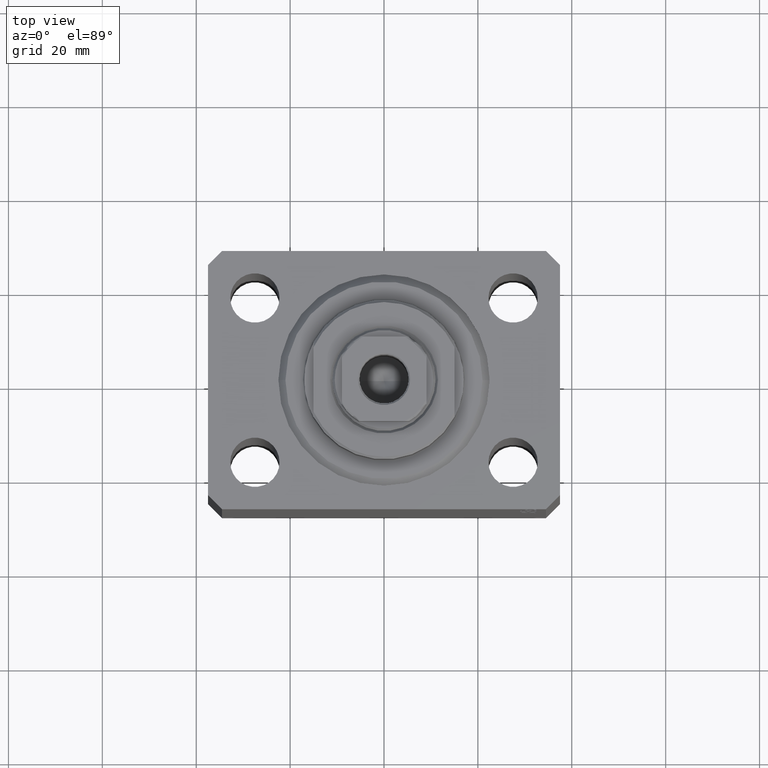
[diagram: clean part render]
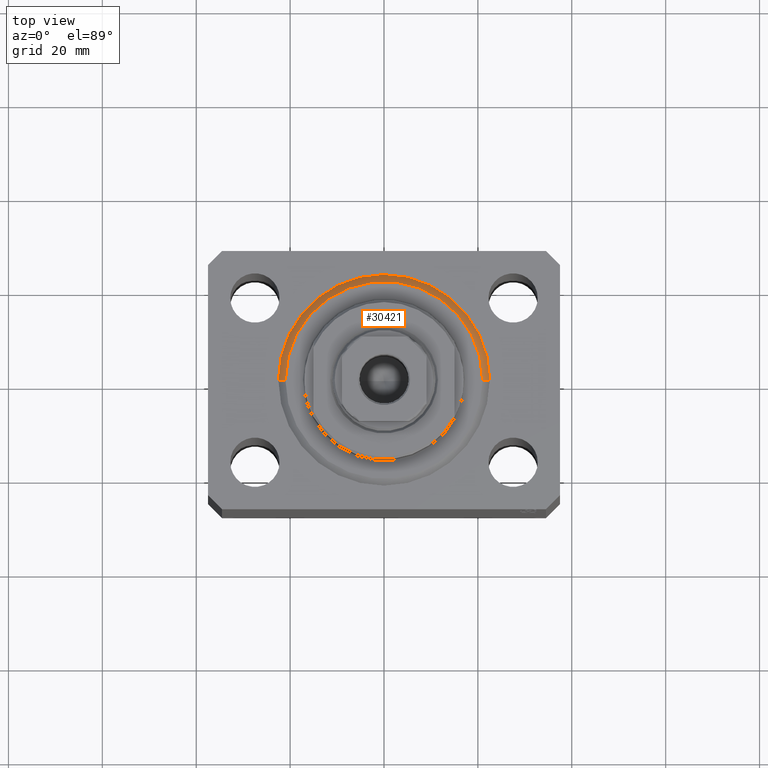
[diagram: same view with one face highlighted and labeled with its STEP entity id]
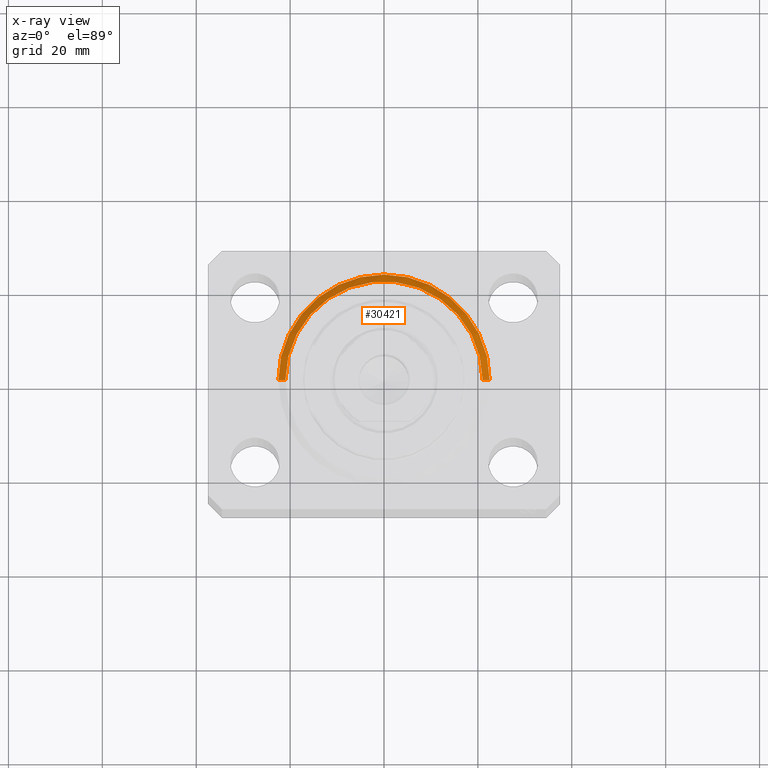
[diagram: x-ray of the same camera — body ghosted, the highlighted face saturated]
A machine part, top view. The second image highlights one B-rep face of the part: STEP entity #30421.
The next image is the same camera in x-ray: the body ghosted, the highlighted face saturated — about 0% of this face is hidden behind the body in this view.
In plain terms, the highlighted conical surface has half-angle 45 deg.
Its self-contained STEP definition (entity closure, byte-faithful):
#1839 = EDGE_CURVE ( 'NONE', #23540, #23786, #26737, .T. ) ;
#2603 = LINE ( 'NONE', #16341, #19547 ) ;
#3036 = AXIS2_PLACEMENT_3D ( 'NONE', #12603, #15987, #12831 ) ;
#7848 = VECTOR ( 'NONE', #9376, 1000.000000000000114 ) ;
#9133 = DIRECTION ( 'NONE',  ( -0.7071067811865500152, 8.659560562354963673E-17, 0.7071067811865451302 ) ) ;
#9376 = DIRECTION ( 'NONE',  ( 0.7071067811865500152, 0.000000000000000000, 0.7071067811865451302 ) ) ;
#9842 = ORIENTED_EDGE ( 'NONE', *, *, #1839, .F. ) ;
#10996 = AXIS2_PLACEMENT_3D ( 'NONE', #13302, #26396, #12635 ) ;
#12603 = CARTESIAN_POINT ( 'NONE',  ( 0.000000000000000000, 0.000000000000000000, 1.500000000000001332 ) ) ;
#12635 = DIRECTION ( 'NONE',  ( 1.000000000000000000, 0.000000000000000000, 0.000000000000000000 ) ) ;
#12831 = DIRECTION ( 'NONE',  ( 1.000000000000000000, 0.000000000000000000, 0.000000000000000000 ) ) ;
#13302 = CARTESIAN_POINT ( 'NONE',  ( 0.000000000000000000, 0.000000000000000000, 1.500000000000001332 ) ) ;
#14079 = ORIENTED_EDGE ( 'NONE', *, *, #33461, .F. ) ;
#14823 = EDGE_LOOP ( 'NONE', ( #34274, #15816, #14079, #9842 ) ) ;
#15816 = ORIENTED_EDGE ( 'NONE', *, *, #36765, .T. ) ;
#15987 = DIRECTION ( 'NONE',  ( -0.000000000000000000, -0.000000000000000000, 1.000000000000000000 ) ) ;
#16341 = CARTESIAN_POINT ( 'NONE',  ( -22.50000000000000355, 2.755455298081545172E-15, 1.500000000000001332 ) ) ;
#16367 = CARTESIAN_POINT ( 'NONE',  ( 22.50000000000000355, 0.000000000000000000, 1.500000000000001332 ) ) ;
#16926 = EDGE_CURVE ( 'NONE', #22621, #23540, #23980, .T. ) ;
#18946 = AXIS2_PLACEMENT_3D ( 'NONE', #39781, #36394, #19727 ) ;
#19547 = VECTOR ( 'NONE', #9133, 1000.000000000000114 ) ;
#19727 = DIRECTION ( 'NONE',  ( 1.000000000000000000, 0.000000000000000000, 0.000000000000000000 ) ) ;
#22621 = VERTEX_POINT ( 'NONE', #27970 ) ;
#23540 = VERTEX_POINT ( 'NONE', #39718 ) ;
#23786 = VERTEX_POINT ( 'NONE', #34745 ) ;
#23980 = CIRCLE ( 'NONE', #18946, 20.99999999999998934 ) ;
#24670 = CIRCLE ( 'NONE', #10996, 22.50000000000000355 ) ;
#25321 = CONICAL_SURFACE ( 'NONE', #3036, 22.50000000000000355, 0.7853981633974517207 ) ;
#26396 = DIRECTION ( 'NONE',  ( -0.000000000000000000, -0.000000000000000000, 1.000000000000000000 ) ) ;
#26737 = LINE ( 'NONE', #16367, #7848 ) ;
#27970 = CARTESIAN_POINT ( 'NONE',  ( -20.99999999999998934, 2.663606788145492628E-15, 0.000000000000000000 ) ) ;
#29969 = FACE_OUTER_BOUND ( 'NONE', #14823, .T. ) ;
#30421 = ADVANCED_FACE ( 'NONE', ( #29969 ), #25321, .T. ) ;
#33461 = EDGE_CURVE ( 'NONE', #23786, #43891, #24670, .T. ) ;
#34274 = ORIENTED_EDGE ( 'NONE', *, *, #16926, .F. ) ;
#34745 = CARTESIAN_POINT ( 'NONE',  ( 22.50000000000000355, 2.755455298081545172E-15, 1.500000000000001332 ) ) ;
#36394 = DIRECTION ( 'NONE',  ( -0.000000000000000000, -0.000000000000000000, -1.000000000000000000 ) ) ;
#36765 = EDGE_CURVE ( 'NONE', #22621, #43891, #2603, .T. ) ;
#39718 = CARTESIAN_POINT ( 'NONE',  ( 20.99999999999998934, 0.000000000000000000, 0.000000000000000000 ) ) ;
#39734 = CARTESIAN_POINT ( 'NONE',  ( -22.50000000000000355, 0.000000000000000000, 1.500000000000001332 ) ) ;
#39781 = CARTESIAN_POINT ( 'NONE',  ( 0.000000000000000000, 0.000000000000000000, 0.000000000000000000 ) ) ;
#43891 = VERTEX_POINT ( 'NONE', #39734 ) ;